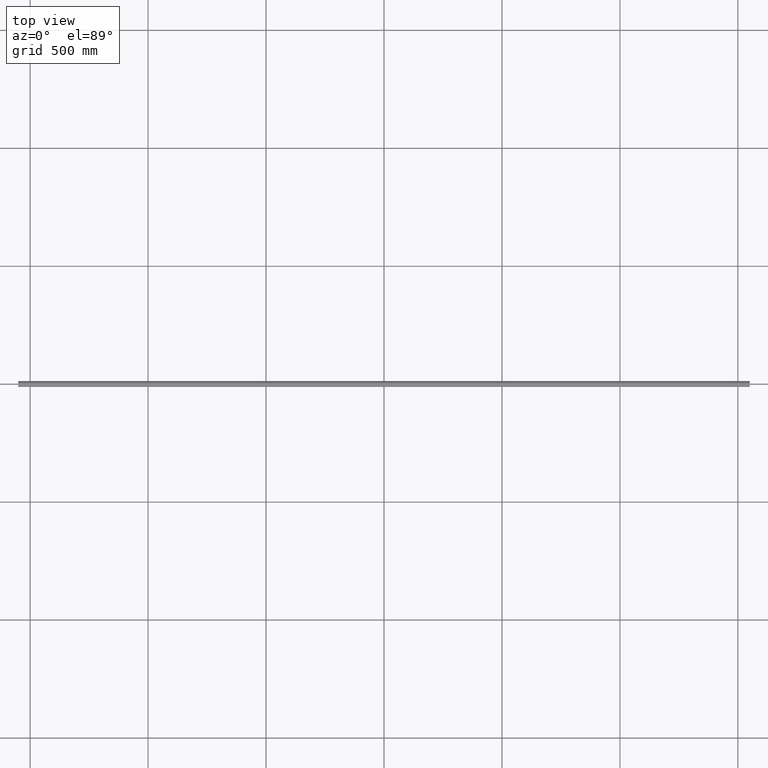
[diagram: clean part render]
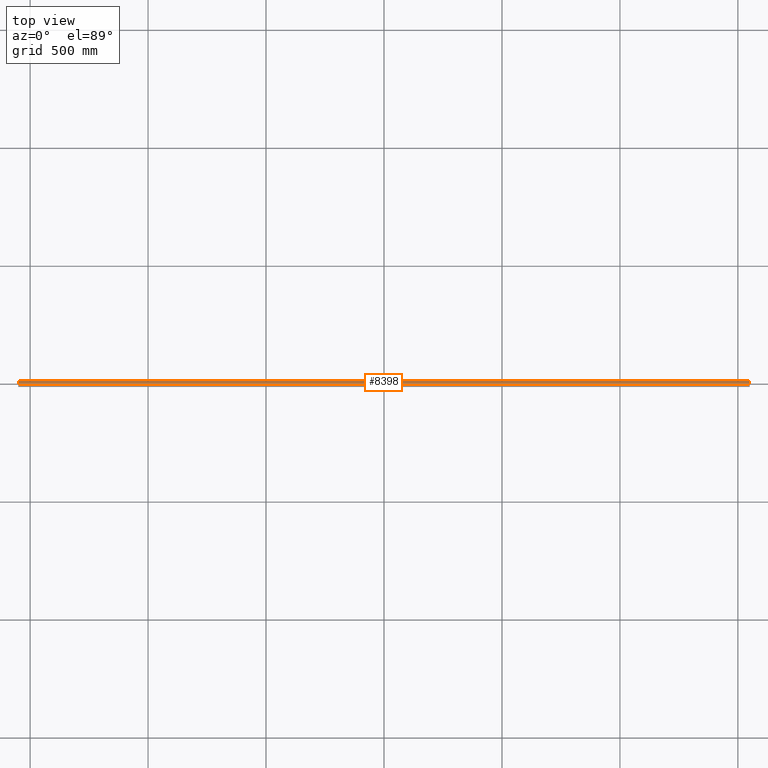
[diagram: same view with one face highlighted and labeled with its STEP entity id]
A machine part, top view. The second image highlights one B-rep face of the part: STEP entity #8398.
In plain terms, the highlighted cylindrical surface (edge-blend (fillet) strip) has radius 12.5 mm, axis along (-1, -0, -0).
Its self-contained STEP definition (entity closure, byte-faithful):
#164 = CARTESIAN_POINT ( 'NONE',  ( -1380.882055014743200, 3.291149578720083300, -12.05903691066760100 ) ) ;
#220 = CARTESIAN_POINT ( 'NONE',  ( -1378.487182274316600, 3.053142613515909000, -12.12172586120242100 ) ) ;
#231 = CARTESIAN_POINT ( 'NONE',  ( 693.4000000000000900, 1.530817147818667500E-015, -12.50000000000000000 ) ) ;
#269 = EDGE_CURVE ( 'NONE', #14058, #1977, #1271, .T. ) ;
#402 = CIRCLE ( 'NONE', #16149, 12.50000000000000000 ) ;
#412 = VERTEX_POINT ( 'NONE', #3174 ) ;
#500 = CARTESIAN_POINT ( 'NONE',  ( -1383.290153571396300, 0.8858490098630040800, -12.47049837081997800 ) ) ;
#530 = CARTESIAN_POINT ( 'NONE',  ( -686.6000000000001400, 1.530817147818667500E-015, -12.50000000000000000 ) ) ;
#543 = CARTESIAN_POINT ( 'NONE',  ( -3.399999999999987900, -3.085611381634476200E-019, -12.50000000000000000 ) ) ;
#549 = CARTESIAN_POINT ( 'NONE',  ( -1376.621719241459900, 0.4448867375077864000, -12.49403760771221700 ) ) ;
#576 = EDGE_CURVE ( 'NONE', #9384, #15832, #13231, .T. ) ;
#581 = CARTESIAN_POINT ( 'NONE',  ( -686.9450387026386100, 1.508773953162621000, -12.41031890877710200 ) ) ;
#648 = VERTEX_POINT ( 'NONE', #1802 ) ;
#721 = VECTOR ( 'NONE', #1426, 1000.000000000000000 ) ;
#738 = CARTESIAN_POINT ( 'NONE',  ( 1383.290102908206600, 0.8865257729732701800, -12.47048403254627800 ) ) ;
#771 = CARTESIAN_POINT ( 'NONE',  ( -3.399999999999987900, 0.2257309346313096400, -12.50000000000000400 ) ) ;
#792 = CARTESIAN_POINT ( 'NONE',  ( 1382.248139031425800, 2.560279434377590300, -12.23603317420600000 ) ) ;
#842 = EDGE_LOOP ( 'NONE', ( #6032, #9832, #8784, #16096, #4568, #16054, #6391, #7856, #9077, #9102, #1827, #3253, #8480, #15078 ) ) ;
#889 = CARTESIAN_POINT ( 'NONE',  ( -2.558929262746102700, 2.249555390736926800, -12.29693940646134300 ) ) ;
#996 = CARTESIAN_POINT ( 'NONE',  ( -2.948822403490601700, 1.707024174918695600, -12.38430592481708800 ) ) ;
#1053 = CARTESIAN_POINT ( 'NONE',  ( 688.2958995781209500, 2.950570385327931700, -12.14744228481905900 ) ) ;
#1105 = CARTESIAN_POINT ( 'NONE',  ( 686.9467577992732000, 1.512253423253397500, -12.40989427573226300 ) ) ;
#1253 = CARTESIAN_POINT ( 'NONE',  ( 690.8853662564489500, 3.290199395220138700, -12.05929658612623900 ) ) ;
#1271 = LINE ( 'NONE', #2999, #11084 ) ;
#1280 = VERTEX_POINT ( 'NONE', #2318 ) ;
#1297 = VERTEX_POINT ( 'NONE', #11122 ) ;
#1423 = CARTESIAN_POINT ( 'NONE',  ( -1382.558929262746200, 2.249555390737002700, -12.29693940646133000 ) ) ;
#1426 = DIRECTION ( 'NONE',  ( -1.000000000000000000, -0.0000000000000000000, -0.0000000000000000000 ) ) ;
#1535 = AXIS2_PLACEMENT_3D ( 'NONE', #3335, #7072, #8226 ) ;
#1571 = CARTESIAN_POINT ( 'NONE',  ( -687.2984030861954400, 2.076183846916757900, -12.32778155075019700 ) ) ;
#1802 = CARTESIAN_POINT ( 'NONE',  ( -693.3999999999999800, 1.240253457150525300E-014, -12.50000000000000000 ) ) ;
#1827 = ORIENTED_EDGE ( 'NONE', *, *, #16151, .T. ) ;
#1839 = CARTESIAN_POINT ( 'NONE',  ( -693.3999999999999800, 1.240253457150525300E-014, -12.50000000000000000 ) ) ;
#1883 = CARTESIAN_POINT ( 'NONE',  ( 1377.298735638538300, 2.076693513877993600, -12.32770492924914200 ) ) ;
#1889 = CARTESIAN_POINT ( 'NONE',  ( -691.7041004218792800, 2.950570385327931700, -12.14744228481905900 ) ) ;
#1932 = CARTESIAN_POINT ( 'NONE',  ( 1378.491150577891600, 3.054930781526008100, -12.12126751630187900 ) ) ;
#1977 = VERTEX_POINT ( 'NONE', #231 ) ;
#2002 = CARTESIAN_POINT ( 'NONE',  ( -691.5088494221088200, 3.054930781525983600, -12.12126751630187900 ) ) ;
#2049 = EDGE_CURVE ( 'NONE', #13836, #7710, #12762, .T. ) ;
#2090 = CARTESIAN_POINT ( 'NONE',  ( 693.2250748562823900, 1.099126717669559800, -12.45328610117817200 ) ) ;
#2105 = CARTESIAN_POINT ( 'NONE',  ( 1383.054961297362100, 1.508773953162735800, -12.41031890877709300 ) ) ;
#2199 = VECTOR ( 'NONE', #8029, 1000.000000000000000 ) ;
#2209 = CARTESIAN_POINT ( 'NONE',  ( 3.054961297361529200, 1.508773953162645000, -12.41031890877710400 ) ) ;
#2318 = CARTESIAN_POINT ( 'NONE',  ( 3.399999999999987900, 1.530817148184698900E-015, -12.50000000000000000 ) ) ;
#2463 = VERTEX_POINT ( 'NONE', #11539 ) ;
#2473 = CARTESIAN_POINT ( 'NONE',  ( 689.1179449852576200, 3.291149578720000200, -12.05903691066762600 ) ) ;
#2488 = FACE_OUTER_BOUND ( 'NONE', #842, .T. ) ;
#2752 = CARTESIAN_POINT ( 'NONE',  ( -1376.600000000000400, 0.2224906580846714400, -12.50000000000000000 ) ) ;
#2941 = EDGE_CURVE ( 'NONE', #1977, #7669, #14790, .T. ) ;
#2950 = CARTESIAN_POINT ( 'NONE',  ( -688.9013271858090100, 3.225401577627969600, -12.07703201683448800 ) ) ;
#2999 = CARTESIAN_POINT ( 'NONE',  ( 1550.000000000000000, 1.530808498934191500E-015, -12.50000000000000000 ) ) ;
#3027 = CARTESIAN_POINT ( 'NONE',  ( -1383.377737069944000, 0.4480304431356929000, -12.49389157976499500 ) ) ;
#3075 = CYLINDRICAL_SURFACE ( 'NONE', #10235, 12.50000000000000000 ) ;
#3118 = CARTESIAN_POINT ( 'NONE',  ( -692.9488224034907900, 1.707024174918659000, -12.38430592481709500 ) ) ;
#3173 = CARTESIAN_POINT ( 'NONE',  ( 1377.924774221110300, 2.702454775431760900, -12.20503821577508900 ) ) ;
#3174 = CARTESIAN_POINT ( 'NONE',  ( 1383.400000000000100, 1.530817149939125600E-015, -12.50000000000000000 ) ) ;
#3179 = CARTESIAN_POINT ( 'NONE',  ( -692.5589292627465700, 2.249555390736871300, -12.29693940646135500 ) ) ;
#3226 = CARTESIAN_POINT ( 'NONE',  ( 1376.946757799273400, 1.512253423253430800, -12.40989427573225600 ) ) ;
#3253 = ORIENTED_EDGE ( 'NONE', *, *, #576, .T. ) ;
#3279 = CARTESIAN_POINT ( 'NONE',  ( 1383.399999999999900, 0.2224906580846714400, -12.50000000000000000 ) ) ;
#3286 = CARTESIAN_POINT ( 'NONE',  ( -693.2901535713963300, 0.8858490098629775400, -12.47049837081998000 ) ) ;
#3315 = CARTESIAN_POINT ( 'NONE',  ( 1.098672814191161000, 3.225401577627994500, -12.07703201683448700 ) ) ;
#3335 = CARTESIAN_POINT ( 'NONE',  ( -1550.000000000000000, 0.0000000000000000000, 0.0000000000000000000 ) ) ;
#3374 = CARTESIAN_POINT ( 'NONE',  ( -0.8820550147423875700, 3.291149578720026400, -12.05903691066762000 ) ) ;
#3381 = DIRECTION ( 'NONE',  ( 1.000000000000000000, 0.0000000000000000000, 0.0000000000000000000 ) ) ;
#3396 = CARTESIAN_POINT ( 'NONE',  ( 1377.051177596509400, 1.707024174918713200, -12.38430592481708500 ) ) ;
#3430 = CARTESIAN_POINT ( 'NONE',  ( -2.701264361461520800, 2.076693513877970500, -12.32770492924914400 ) ) ;
#3500 = VECTOR ( 'NONE', #7631, 1000.000000000000000 ) ;
#3540 = CARTESIAN_POINT ( 'NONE',  ( -1.704100421879114700, 2.950570385327913000, -12.14744228481906400 ) ) ;
#3636 = CARTESIAN_POINT ( 'NONE',  ( 686.6000000000002500, 0.2257309346313073600, -12.49999999999999800 ) ) ;
#3742 = CARTESIAN_POINT ( 'NONE',  ( 689.7765544462710100, 3.400048205355171500, -12.02870201658427800 ) ) ;
#3798 = CARTESIAN_POINT ( 'NONE',  ( 691.0986728141911000, 3.225401577627969600, -12.07703201683448800 ) ) ;
#3907 = CARTESIAN_POINT ( 'NONE',  ( -1377.438393705202800, 2.246627044520734800, -12.29748777373633400 ) ) ;
#3964 = CARTESIAN_POINT ( 'NONE',  ( -1383.053242200727000, 1.512253423253430800, -12.40989427573225600 ) ) ;
#4115 = CARTESIAN_POINT ( 'NONE',  ( -687.0516343046770100, 1.707719232637206600, -12.38420091696254300 ) ) ;
#4223 = CARTESIAN_POINT ( 'NONE',  ( -689.5499947649567500, 3.377392597374309100, -12.03516786154909300 ) ) ;
#4248 = CARTESIAN_POINT ( 'NONE',  ( -1381.508849422109100, 3.054930781526008100, -12.12126751630187900 ) ) ;
#4293 = CARTESIAN_POINT ( 'NONE',  ( -1383.400000000000100, -9.932824226667062300E-015, -12.50000000000000000 ) ) ;
#4351 = CARTESIAN_POINT ( 'NONE',  ( -1550.000000000000000, 0.0000000000000000000, 12.50000000000000000 ) ) ;
#4362 = CARTESIAN_POINT ( 'NONE',  ( 3.399999999999988400, 0.2224906580846638700, -12.50000000000000200 ) ) ;
#4434 = CARTESIAN_POINT ( 'NONE',  ( 1376.600000000000100, -9.932824226667062300E-015, -12.50000000000000000 ) ) ;
#4443 = CARTESIAN_POINT ( 'NONE',  ( -693.2238383281429600, 1.102753275414778200, -12.45296436855722700 ) ) ;
#4491 = CARTESIAN_POINT ( 'NONE',  ( 1550.000000000000000, 1.530808498934191500E-015, -12.50000000000000000 ) ) ;
#4535 = CARTESIAN_POINT ( 'NONE',  ( 1381.512817725683400, 3.053142613515909000, -12.12172586120242100 ) ) ;
#4568 = ORIENTED_EDGE ( 'NONE', *, *, #2941, .T. ) ;
#4629 = CARTESIAN_POINT ( 'NONE',  ( -3.399999999999987900, -3.085611381634476200E-019, -12.50000000000000000 ) ) ;
#4901 = CARTESIAN_POINT ( 'NONE',  ( 692.7015969138050200, 2.076183846916757900, -12.32778155075019700 ) ) ;
#5017 = CARTESIAN_POINT ( 'NONE',  ( 686.7761616718568100, 1.102753275414778200, -12.45296436855722700 ) ) ;
#5237 = DIRECTION ( 'NONE',  ( -1.000000000000000000, -0.0000000000000000000, -0.0000000000000000000 ) ) ;
#5291 = LINE ( 'NONE', #4491, #8814 ) ;
#5387 = CARTESIAN_POINT ( 'NONE',  ( -686.7749251437178400, 1.099126717669559800, -12.45328610117817200 ) ) ;
#5442 = CARTESIAN_POINT ( 'NONE',  ( -686.6217192414599100, 0.4448867375077629700, -12.49403760771221900 ) ) ;
#5493 = CARTESIAN_POINT ( 'NONE',  ( -686.7098970917935500, 0.8865257729732174400, -12.47048403254628500 ) ) ;
#5516 = CARTESIAN_POINT ( 'NONE',  ( -1377.925459137238700, 2.702775320397860600, -12.20495341510522500 ) ) ;
#5657 = CARTESIAN_POINT ( 'NONE',  ( -690.8820550147423800, 3.291149578720000200, -12.05903691066762600 ) ) ;
#5798 = CARTESIAN_POINT ( 'NONE',  ( 3.378280758540311600, 0.4448867375077679700, -12.49403760771222100 ) ) ;
#5853 = CARTESIAN_POINT ( 'NONE',  ( 693.4000000000002000, 0.2224906580846630300, -12.50000000000000000 ) ) ;
#5873 = CARTESIAN_POINT ( 'NONE',  ( 1381.707697899846200, 2.948301563049428700, -12.14797926367841200 ) ) ;
#5925 = CARTESIAN_POINT ( 'NONE',  ( 1382.074540862761500, 2.702775320397860600, -12.20495341510522500 ) ) ;
#5954 = EDGE_CURVE ( 'NONE', #1280, #13836, #10257, .T. ) ;
#6032 = ORIENTED_EDGE ( 'NONE', *, *, #9572, .F. ) ;
#6115 = CARTESIAN_POINT ( 'NONE',  ( 691.7076978998461500, 2.948301563049304400, -12.14797926367844400 ) ) ;
#6219 = CARTESIAN_POINT ( 'NONE',  ( 686.6000000000002500, 1.240253457150525300E-014, -12.50000000000000000 ) ) ;
#6260 = B_SPLINE_CURVE_WITH_KNOTS ( 'NONE', 3,
 ( #530, #9329, #5442, #5493, #5387, #581, #4115, #1571, #12859, #10454, #15399, #10399, #15448, #2950, #11709, #4223, #14245, #14616, #15717, #5657, #10813, #2002, #1889, #9479, #7127, #3179, #13132, #3118, #9382, #4443, #3286, #14415, #13190, #1839 ),
 .UNSPECIFIED., .F., .F.,
 ( 4, 2, 2, 2, 2, 2, 2, 2, 2, 2, 2, 2, 2, 2, 2, 2, 4 ),
 ( 0.01068048760817228200, 0.01134783680047156600, 0.01201518599277084900, 0.01268253518507013100, 0.01334988437736941500, 0.01401723356966869800, 0.01468458276196798000, 0.01535193195426726300, 0.01601928114656654700, 0.01668663033886583200, 0.01735397953116511400, 0.01802132872346439600, 0.01868867791576368100, 0.01935602710806296300, 0.02002337630036224400, 0.02069072549266153000, 0.02135807468496081100 ),
 .UNSPECIFIED. ) ;
#6268 = CARTESIAN_POINT ( 'NONE',  ( 687.7530581111726600, 2.561224429050289700, -12.23582231181098500 ) ) ;
#6391 = ORIENTED_EDGE ( 'NONE', *, *, #5954, .T. ) ;
#6695 = DIRECTION ( 'NONE',  ( -1.000000000000000000, -0.0000000000000000000, -0.0000000000000000000 ) ) ;
#6778 = CARTESIAN_POINT ( 'NONE',  ( -1381.099029707849500, 3.225114317319371700, -12.07710089060663700 ) ) ;
#6833 = CARTESIAN_POINT ( 'NONE',  ( -1377.751860968574000, 2.560279434377590300, -12.23603317420600000 ) ) ;
#6891 = CARTESIAN_POINT ( 'NONE',  ( -1376.709897091793200, 0.8865257729732701800, -12.47048403254627800 ) ) ;
#6970 = CARTESIAN_POINT ( 'NONE',  ( 1383.378280758540300, 0.4448867375077864000, -12.49403760771221700 ) ) ;
#7015 = CARTESIAN_POINT ( 'NONE',  ( 1380.450005235042900, 3.377392597374443600, -12.03516786154905600 ) ) ;
#7047 = CARTESIAN_POINT ( 'NONE',  ( 0.4500052350430838700, 3.377392597374347700, -12.03516786154908400 ) ) ;
#7069 = CARTESIAN_POINT ( 'NONE',  ( 1382.561606294797500, 2.246627044520734800, -12.29748777373633400 ) ) ;
#7072 = DIRECTION ( 'NONE',  ( 1.000000000000000000, 0.0000000000000000000, 0.0000000000000000000 ) ) ;
#7100 = CARTESIAN_POINT ( 'NONE',  ( 693.2901029082067900, 0.8865257729732174400, -12.47048403254628500 ) ) ;
#7121 = CARTESIAN_POINT ( 'NONE',  ( 1376.599999999999900, 0.2257309346313159700, -12.50000000000000200 ) ) ;
#7127 = CARTESIAN_POINT ( 'NONE',  ( -692.2469418888275600, 2.561224429050289700, -12.23582231181098500 ) ) ;
#7178 = CARTESIAN_POINT ( 'NONE',  ( 1376.776161671857400, 1.102753275414796000, -12.45296436855723100 ) ) ;
#7211 = CARTESIAN_POINT ( 'NONE',  ( 1.512817725683325700, 3.053142613515821100, -12.12172586120244100 ) ) ;
#7257 = CARTESIAN_POINT ( 'NONE',  ( 2.701596913804633600, 2.076183846916805500, -12.32778155075019200 ) ) ;
#7361 = B_SPLINE_CURVE_WITH_KNOTS ( 'NONE', 3,
 ( #11533, #3279, #6970, #738, #14609, #2105, #14501, #14554, #7069, #792, #5925, #5873, #4535, #10867, #15823, #7015, #15766, #10706, #13415, #8430, #14664, #1932, #11904, #3173, #9523, #10657, #1883, #3396, #3226, #7178, #12124, #12013, #7121, #4434 ),
 .UNSPECIFIED., .F., .F.,
 ( 4, 2, 2, 2, 2, 2, 2, 2, 2, 2, 2, 2, 2, 2, 2, 2, 4 ),
 ( 0.01068048760817264100, 0.01134783680047194900, 0.01201518599277125500, 0.01268253518507056500, 0.01334988437736987300, 0.01401723356966918000, 0.01468458276196848800, 0.01535193195426779600, 0.01601928114656710200, 0.01668663033886641500, 0.01735397953116572100, 0.01802132872346502700, 0.01868867791576433300, 0.01935602710806364300, 0.02002337630036294900, 0.02069072549266225800, 0.02135807468496156400 ),
 .UNSPECIFIED. ) ;
#7415 = CARTESIAN_POINT ( 'NONE',  ( -1383.400000000000100, -9.932824226667062300E-015, -12.50000000000000000 ) ) ;
#7631 = DIRECTION ( 'NONE',  ( -1.000000000000000000, -0.0000000000000000000, -0.0000000000000000000 ) ) ;
#7669 = VERTEX_POINT ( 'NONE', #10010 ) ;
#7704 = CARTESIAN_POINT ( 'NONE',  ( -1379.549994764957100, 3.377392597374443600, -12.03516786154905600 ) ) ;
#7708 = CARTESIAN_POINT ( 'NONE',  ( 1550.000000000000000, 1.530808498934191500E-015, -12.50000000000000000 ) ) ;
#7710 = VERTEX_POINT ( 'NONE', #10877 ) ;
#7856 = ORIENTED_EDGE ( 'NONE', *, *, #2049, .T. ) ;
#7974 = DIRECTION ( 'NONE',  ( 0.0000000000000000000, 0.0000000000000000000, 1.000000000000000000 ) ) ;
#8028 = CARTESIAN_POINT ( 'NONE',  ( -1377.051634304677500, 1.707719232637369100, -12.38420091696252900 ) ) ;
#8029 = DIRECTION ( 'NONE',  ( -1.000000000000000000, -0.0000000000000000000, -0.0000000000000000000 ) ) ;
#8203 = LINE ( 'NONE', #7708, #721 ) ;
#8226 = DIRECTION ( 'NONE',  ( 0.0000000000000000000, 0.0000000000000000000, -1.000000000000000000 ) ) ;
#8243 = EDGE_CURVE ( 'NONE', #1297, #14933, #12874, .T. ) ;
#8309 = CARTESIAN_POINT ( 'NONE',  ( 1.707697899846059700, 2.948301563049316300, -12.14797926367844200 ) ) ;
#8311 = EDGE_CURVE ( 'NONE', #648, #2463, #8203, .T. ) ;
#8361 = CARTESIAN_POINT ( 'NONE',  ( -3.223838328143045800, 1.102753275414799100, -12.45296436855723100 ) ) ;
#8398 = ADVANCED_FACE ( 'NONE', ( #2488 ), #3075, .T. ) ;
#8430 = CARTESIAN_POINT ( 'NONE',  ( 1379.117944985257500, 3.291149578720083300, -12.05903691066760100 ) ) ;
#8467 = CARTESIAN_POINT ( 'NONE',  ( -3.377737069943542300, 0.4480304431356853000, -12.49389157976499100 ) ) ;
#8480 = ORIENTED_EDGE ( 'NONE', *, *, #10687, .T. ) ;
#8523 = CARTESIAN_POINT ( 'NONE',  ( 693.4000000000000900, 1.530817147818667500E-015, -12.50000000000000000 ) ) ;
#8582 = CARTESIAN_POINT ( 'NONE',  ( 686.7098464286039000, 0.8858490098629775400, -12.47049837081998000 ) ) ;
#8630 = CARTESIAN_POINT ( 'NONE',  ( 692.5616062947976800, 2.246627044520512300, -12.29748777373637700 ) ) ;
#8688 = CARTESIAN_POINT ( 'NONE',  ( 686.6222629300567600, 0.4480304431356896300, -12.49389157976499500 ) ) ;
#8782 = VECTOR ( 'NONE', #13718, 1000.000000000000000 ) ;
#8784 = ORIENTED_EDGE ( 'NONE', *, *, #14584, .T. ) ;
#8797 = CARTESIAN_POINT ( 'NONE',  ( 691.5128177256834800, 3.053142613515797500, -12.12172586120244800 ) ) ;
#8814 = VECTOR ( 'NONE', #13246, 1000.000000000000000 ) ;
#8958 = CARTESIAN_POINT ( 'NONE',  ( -1382.075225778890200, 2.702454775431760900, -12.20503821577508900 ) ) ;
#9009 = CARTESIAN_POINT ( 'NONE',  ( -1379.114633743551400, 3.290199395220273700, -12.05929658612620200 ) ) ;
#9077 = ORIENTED_EDGE ( 'NONE', *, *, #9419, .T. ) ;
#9102 = ORIENTED_EDGE ( 'NONE', *, *, #8311, .T. ) ;
#9135 = VECTOR ( 'NONE', #11506, 1000.000000000000000 ) ;
#9329 = CARTESIAN_POINT ( 'NONE',  ( -686.6000000000002500, 0.2224906580846630300, -12.50000000000000000 ) ) ;
#9350 = CARTESIAN_POINT ( 'NONE',  ( -1380.223445553729100, 3.400048205355289600, -12.02870201658424800 ) ) ;
#9362 = B_SPLINE_CURVE_WITH_KNOTS ( 'NONE', 3,
 ( #13929, #2752, #549, #6891, #15243, #15525, #8028, #10526, #3907, #6833, #5516, #12644, #220, #15183, #9009, #7704, #14323, #9350, #10576, #164, #6778, #4248, #11507, #8958, #12992, #1423, #14268, #11450, #3964, #12696, #500, #3027, #11783, #4293 ),
 .UNSPECIFIED., .F., .F.,
 ( 4, 2, 2, 2, 2, 2, 2, 2, 2, 2, 2, 2, 2, 2, 2, 2, 4 ),
 ( 0.01068048760817264100, 0.01134783680047194900, 0.01201518599277125500, 0.01268253518507056500, 0.01334988437736987300, 0.01401723356966918000, 0.01468458276196848800, 0.01535193195426779600, 0.01601928114656710200, 0.01668663033886641500, 0.01735397953116572100, 0.01802132872346502700, 0.01868867791576433300, 0.01935602710806364300, 0.02002337630036294900, 0.02069072549266225800, 0.02135807468496156400 ),
 .UNSPECIFIED. ) ;
#9382 = CARTESIAN_POINT ( 'NONE',  ( -693.0532422007272500, 1.512253423253397500, -12.40989427573226300 ) ) ;
#9384 = VERTEX_POINT ( 'NONE', #7415 ) ;
#9419 = EDGE_CURVE ( 'NONE', #7710, #648, #6260, .T. ) ;
#9479 = CARTESIAN_POINT ( 'NONE',  ( -692.0752257788899400, 2.702454775431625000, -12.20503821577511700 ) ) ;
#9523 = CARTESIAN_POINT ( 'NONE',  ( 1377.753058111172300, 2.561224429050425100, -12.23582231181095600 ) ) ;
#9572 = EDGE_CURVE ( 'NONE', #14030, #1297, #402, .T. ) ;
#9671 = CARTESIAN_POINT ( 'NONE',  ( 2.074540862761341800, 2.702775320397742000, -12.20495341510525300 ) ) ;
#9819 = CARTESIAN_POINT ( 'NONE',  ( 688.4911505778914000, 3.054930781525983600, -12.12126751630187900 ) ) ;
#9832 = ORIENTED_EDGE ( 'NONE', *, *, #14016, .T. ) ;
#10010 = CARTESIAN_POINT ( 'NONE',  ( 686.6000000000002500, 1.240253457150525300E-014, -12.50000000000000000 ) ) ;
#10035 = CARTESIAN_POINT ( 'NONE',  ( 690.2249101616985200, 3.399951636918531000, -12.02872931232275500 ) ) ;
#10138 = CARTESIAN_POINT ( 'NONE',  ( 1376.600000000000100, -9.932824226667062300E-015, -12.50000000000000000 ) ) ;
#10142 = LINE ( 'NONE', #10355, #3500 ) ;
#10201 = CARTESIAN_POINT ( 'NONE',  ( 1550.000000000000000, 0.0000000000000000000, 0.0000000000000000000 ) ) ;
#10235 = AXIS2_PLACEMENT_3D ( 'NONE', #10201, #5237, #7974 ) ;
#10257 = B_SPLINE_CURVE_WITH_KNOTS ( 'NONE', 3,
 ( #12998, #4362, #5798, #14591, #14536, #2209, #12218, #7257, #13446, #10848, #9671, #8309, #7211, #3315, #13275, #7047, #15976, #12109, #16028, #3374, #12053, #15912, #3540, #15805, #13395, #889, #3430, #996, #14647, #8361, #13500, #8467, #771, #4629 ),
 .UNSPECIFIED., .F., .F.,
 ( 4, 2, 2, 2, 2, 2, 2, 2, 2, 2, 2, 2, 2, 2, 2, 2, 4 ),
 ( 0.01068048760817239500, 0.01134783680047168500, 0.01201518599277097800, 0.01268253518507026800, 0.01334988437736955900, 0.01401723356966884900, 0.01468458276196813900, 0.01535193195426743000, 0.01601928114656672000, 0.01668663033886601300, 0.01735397953116530100, 0.01802132872346459300, 0.01868867791576388200, 0.01935602710806317400, 0.02002337630036246700, 0.02069072549266175900, 0.02135807468496104700 ),
 .UNSPECIFIED. ) ;
#10355 = CARTESIAN_POINT ( 'NONE',  ( 1550.000000000000000, 1.530808498934191500E-015, -12.50000000000000000 ) ) ;
#10399 = CARTESIAN_POINT ( 'NONE',  ( -688.2923021001540700, 2.948301563049304400, -12.14797926367844400 ) ) ;
#10454 = CARTESIAN_POINT ( 'NONE',  ( -687.7518609685741900, 2.560279434377374500, -12.23603317420604600 ) ) ;
#10526 = CARTESIAN_POINT ( 'NONE',  ( -1377.298403086195800, 2.076183846916918700, -12.32778155075017400 ) ) ;
#10576 = CARTESIAN_POINT ( 'NONE',  ( -1380.444814638787900, 3.378139508022424600, -12.03495784066944600 ) ) ;
#10657 = CARTESIAN_POINT ( 'NONE',  ( 1377.441070737253800, 2.249555390737002700, -12.29693940646133000 ) ) ;
#10687 = EDGE_CURVE ( 'NONE', #15832, #14933, #12326, .T. ) ;
#10706 = CARTESIAN_POINT ( 'NONE',  ( 1379.776554446271100, 3.400048205355289600, -12.02870201658424800 ) ) ;
#10813 = CARTESIAN_POINT ( 'NONE',  ( -691.0990297078490100, 3.225114317319322000, -12.07710089060665500 ) ) ;
#10848 = CARTESIAN_POINT ( 'NONE',  ( 2.248139031426001900, 2.560279434377429600, -12.23603317420603700 ) ) ;
#10867 = CARTESIAN_POINT ( 'NONE',  ( 1381.098672814191300, 3.225401577628083300, -12.07703201683446500 ) ) ;
#10877 = CARTESIAN_POINT ( 'NONE',  ( -686.6000000000001400, 1.530817147818667500E-015, -12.50000000000000000 ) ) ;
#11084 = VECTOR ( 'NONE', #6695, 1000.000000000000000 ) ;
#11122 = CARTESIAN_POINT ( 'NONE',  ( 1550.000000000000000, 0.0000000000000000000, 12.50000000000000000 ) ) ;
#11224 = CARTESIAN_POINT ( 'NONE',  ( 687.9247742211100600, 2.702454775431625000, -12.20503821577511700 ) ) ;
#11277 = CARTESIAN_POINT ( 'NONE',  ( 690.4500052350432500, 3.377392597374309100, -12.03516786154909300 ) ) ;
#11450 = CARTESIAN_POINT ( 'NONE',  ( -1382.948822403490600, 1.707024174918713200, -12.38430592481708500 ) ) ;
#11506 = DIRECTION ( 'NONE',  ( -1.000000000000000000, -0.0000000000000000000, -0.0000000000000000000 ) ) ;
#11507 = CARTESIAN_POINT ( 'NONE',  ( -1381.704100421879300, 2.950570385328055200, -12.14744228481902900 ) ) ;
#11533 = CARTESIAN_POINT ( 'NONE',  ( 1383.400000000000100, 1.530817149939125600E-015, -12.50000000000000000 ) ) ;
#11539 = CARTESIAN_POINT ( 'NONE',  ( -1376.600000000000100, 1.530817149939125600E-015, -12.50000000000000000 ) ) ;
#11709 = CARTESIAN_POINT ( 'NONE',  ( -689.1146337435511700, 3.290199395220138700, -12.05929658612623900 ) ) ;
#11783 = CARTESIAN_POINT ( 'NONE',  ( -1383.400000000000300, 0.2257309346313159700, -12.50000000000000200 ) ) ;
#11904 = CARTESIAN_POINT ( 'NONE',  ( 1378.295899578121200, 2.950570385328055200, -12.14744228481902900 ) ) ;
#12013 = CARTESIAN_POINT ( 'NONE',  ( 1376.622262930056400, 0.4480304431356929000, -12.49389157976499500 ) ) ;
#12053 = CARTESIAN_POINT ( 'NONE',  ( -1.099029707848881500, 3.225114317319354400, -12.07710089060664600 ) ) ;
#12109 = CARTESIAN_POINT ( 'NONE',  ( -0.2234455537290499200, 3.400048205355200800, -12.02870201658427800 ) ) ;
#12124 = CARTESIAN_POINT ( 'NONE',  ( 1376.709846428603700, 0.8858490098630040800, -12.47049837081997800 ) ) ;
#12218 = CARTESIAN_POINT ( 'NONE',  ( 2.948365695323054600, 1.707719232637258800, -12.38420091696254100 ) ) ;
#12266 = CARTESIAN_POINT ( 'NONE',  ( 693.3782807585405400, 0.4448867375077629700, -12.49403760771221900 ) ) ;
#12306 = CARTESIAN_POINT ( 'NONE',  ( 692.0745408627615200, 2.702775320397728700, -12.20495341510524800 ) ) ;
#12319 = EDGE_CURVE ( 'NONE', #7669, #1280, #5291, .T. ) ;
#12326 = CIRCLE ( 'NONE', #1535, 12.50000000000000000 ) ;
#12478 = CARTESIAN_POINT ( 'NONE',  ( 688.9009702921512100, 3.225114317319322000, -12.07710089060665500 ) ) ;
#12540 = CARTESIAN_POINT ( 'NONE',  ( 1550.000000000000000, 0.0000000000000000000, 12.50000000000000000 ) ) ;
#12644 = CARTESIAN_POINT ( 'NONE',  ( -1378.292302100154500, 2.948301563049428700, -12.14797926367841200 ) ) ;
#12696 = CARTESIAN_POINT ( 'NONE',  ( -1383.223838328143300, 1.102753275414796000, -12.45296436855723100 ) ) ;
#12762 = LINE ( 'NONE', #15250, #2199 ) ;
#12859 = CARTESIAN_POINT ( 'NONE',  ( -687.4383937052026600, 2.246627044520512300, -12.29748777373637700 ) ) ;
#12874 = LINE ( 'NONE', #12540, #8782 ) ;
#12992 = CARTESIAN_POINT ( 'NONE',  ( -1382.246941888827900, 2.561224429050425100, -12.23582231181095600 ) ) ;
#12998 = CARTESIAN_POINT ( 'NONE',  ( 3.399999999999987900, 1.530817148184698900E-015, -12.50000000000000000 ) ) ;
#13132 = CARTESIAN_POINT ( 'NONE',  ( -692.7012643614617700, 2.076693513877929200, -12.32770492924915700 ) ) ;
#13190 = CARTESIAN_POINT ( 'NONE',  ( -693.3999999999999800, 0.2257309346313073600, -12.49999999999999800 ) ) ;
#13231 = LINE ( 'NONE', #14045, #9135 ) ;
#13246 = DIRECTION ( 'NONE',  ( -1.000000000000000000, -0.0000000000000000000, -0.0000000000000000000 ) ) ;
#13275 = CARTESIAN_POINT ( 'NONE',  ( 0.8853662564486808300, 3.290199395220185800, -12.05929658612622800 ) ) ;
#13391 = CARTESIAN_POINT ( 'NONE',  ( 693.0549612973615000, 1.508773953162621000, -12.41031890877710200 ) ) ;
#13395 = CARTESIAN_POINT ( 'NONE',  ( -2.246941888827483700, 2.561224429050344800, -12.23582231181097100 ) ) ;
#13402 = DIRECTION ( 'NONE',  ( 0.0000000000000000000, 0.0000000000000000000, -1.000000000000000000 ) ) ;
#13415 = CARTESIAN_POINT ( 'NONE',  ( 1379.555185361212600, 3.378139508022424600, -12.03495784066944600 ) ) ;
#13446 = CARTESIAN_POINT ( 'NONE',  ( 2.561606294797429000, 2.246627044520570000, -12.29748777373636600 ) ) ;
#13500 = CARTESIAN_POINT ( 'NONE',  ( -3.290153571396316600, 0.8858490098629751000, -12.47049837081998200 ) ) ;
#13549 = CARTESIAN_POINT ( 'NONE',  ( 687.0511775965095500, 1.707024174918659000, -12.38430592481709500 ) ) ;
#13718 = DIRECTION ( 'NONE',  ( -1.000000000000000000, -0.0000000000000000000, -0.0000000000000000000 ) ) ;
#13836 = VERTEX_POINT ( 'NONE', #543 ) ;
#13929 = CARTESIAN_POINT ( 'NONE',  ( -1376.600000000000100, 1.530817149939125600E-015, -12.50000000000000000 ) ) ;
#14016 = EDGE_CURVE ( 'NONE', #14030, #412, #10142, .T. ) ;
#14030 = VERTEX_POINT ( 'NONE', #14095 ) ;
#14045 = CARTESIAN_POINT ( 'NONE',  ( 1550.000000000000000, 1.530808498934191500E-015, -12.50000000000000000 ) ) ;
#14058 = VERTEX_POINT ( 'NONE', #10138 ) ;
#14095 = CARTESIAN_POINT ( 'NONE',  ( 1550.000000000000000, 1.530808498934191500E-015, -12.50000000000000000 ) ) ;
#14245 = CARTESIAN_POINT ( 'NONE',  ( -689.7750898383017100, 3.399951636918531000, -12.02872931232275500 ) ) ;
#14268 = CARTESIAN_POINT ( 'NONE',  ( -1382.701264361461900, 2.076693513877993600, -12.32770492924914200 ) ) ;
#14323 = CARTESIAN_POINT ( 'NONE',  ( -1379.775089838301900, 3.399951636918634900, -12.02872931232272400 ) ) ;
#14415 = CARTESIAN_POINT ( 'NONE',  ( -693.3777370699435800, 0.4480304431356896300, -12.49389157976499500 ) ) ;
#14501 = CARTESIAN_POINT ( 'NONE',  ( 1382.948365695323400, 1.707719232637369100, -12.38420091696252900 ) ) ;
#14536 = CARTESIAN_POINT ( 'NONE',  ( 3.225074856282216000, 1.099126717669580500, -12.45328610117816800 ) ) ;
#14554 = CARTESIAN_POINT ( 'NONE',  ( 1382.701596913804700, 2.076183846916918700, -12.32778155075017400 ) ) ;
#14584 = EDGE_CURVE ( 'NONE', #412, #14058, #7361, .T. ) ;
#14591 = CARTESIAN_POINT ( 'NONE',  ( 3.290102908206402600, 0.8865257729732264300, -12.47048403254628100 ) ) ;
#14609 = CARTESIAN_POINT ( 'NONE',  ( 1383.225074856282400, 1.099126717669656000, -12.45328610117816300 ) ) ;
#14616 = CARTESIAN_POINT ( 'NONE',  ( -690.2234455537291100, 3.400048205355171500, -12.02870201658427800 ) ) ;
#14647 = CARTESIAN_POINT ( 'NONE',  ( -3.053242200727046100, 1.512253423253419500, -12.40989427573226000 ) ) ;
#14664 = CARTESIAN_POINT ( 'NONE',  ( 1378.900970292150500, 3.225114317319371700, -12.07710089060663700 ) ) ;
#14790 = B_SPLINE_CURVE_WITH_KNOTS ( 'NONE', 3,
 ( #8523, #5853, #12266, #7100, #2090, #13391, #16184, #4901, #8630, #16074, #12306, #6115, #8797, #3798, #1253, #11277, #10035, #3742, #16276, #2473, #12478, #9819, #1053, #11224, #6268, #16130, #14962, #13549, #1105, #5017, #8582, #8688, #3636, #6219 ),
 .UNSPECIFIED., .F., .F.,
 ( 4, 2, 2, 2, 2, 2, 2, 2, 2, 2, 2, 2, 2, 2, 2, 2, 4 ),
 ( 0.01068048760817228200, 0.01134783680047156600, 0.01201518599277084900, 0.01268253518507013100, 0.01334988437736941500, 0.01401723356966869800, 0.01468458276196798000, 0.01535193195426726300, 0.01601928114656654700, 0.01668663033886583200, 0.01735397953116511400, 0.01802132872346439600, 0.01868867791576368100, 0.01935602710806296300, 0.02002337630036224400, 0.02069072549266153000, 0.02135807468496081100 ),
 .UNSPECIFIED. ) ;
#14933 = VERTEX_POINT ( 'NONE', #4351 ) ;
#14962 = CARTESIAN_POINT ( 'NONE',  ( 687.2987356385388000, 2.076693513877929200, -12.32770492924915700 ) ) ;
#15078 = ORIENTED_EDGE ( 'NONE', *, *, #8243, .F. ) ;
#15183 = CARTESIAN_POINT ( 'NONE',  ( -1378.901327185809800, 3.225401577628083300, -12.07703201683446500 ) ) ;
#15243 = CARTESIAN_POINT ( 'NONE',  ( -1376.774925143717800, 1.099126717669656000, -12.45328610117816300 ) ) ;
#15250 = CARTESIAN_POINT ( 'NONE',  ( 1550.000000000000000, 1.530808498934191500E-015, -12.50000000000000000 ) ) ;
#15399 = CARTESIAN_POINT ( 'NONE',  ( -687.9254591372384800, 2.702775320397728700, -12.20495341510524800 ) ) ;
#15448 = CARTESIAN_POINT ( 'NONE',  ( -688.4871822743167500, 3.053142613515797500, -12.12172586120244800 ) ) ;
#15468 = CARTESIAN_POINT ( 'NONE',  ( -1550.000000000000000, 1.530808498934191500E-015, -12.50000000000000000 ) ) ;
#15525 = CARTESIAN_POINT ( 'NONE',  ( -1376.945038702638800, 1.508773953162735800, -12.41031890877709300 ) ) ;
#15717 = CARTESIAN_POINT ( 'NONE',  ( -690.4448146387878800, 3.378139508022326000, -12.03495784066947700 ) ) ;
#15766 = CARTESIAN_POINT ( 'NONE',  ( 1380.224910161698500, 3.399951636918634900, -12.02872931232272400 ) ) ;
#15805 = CARTESIAN_POINT ( 'NONE',  ( -2.075225778890007700, 2.702454775431597100, -12.20503821577512800 ) ) ;
#15812 = CARTESIAN_POINT ( 'NONE',  ( 1550.000000000000000, 0.0000000000000000000, 0.0000000000000000000 ) ) ;
#15823 = CARTESIAN_POINT ( 'NONE',  ( 1380.885366256449100, 3.290199395220273700, -12.05929658612620200 ) ) ;
#15832 = VERTEX_POINT ( 'NONE', #15468 ) ;
#15912 = CARTESIAN_POINT ( 'NONE',  ( -1.508849422108623300, 3.054930781526016500, -12.12126751630187000 ) ) ;
#15976 = CARTESIAN_POINT ( 'NONE',  ( 0.2249101616983749900, 3.399951636918561200, -12.02872931232274900 ) ) ;
#16028 = CARTESIAN_POINT ( 'NONE',  ( -0.4448146387875762100, 3.378139508022349500, -12.03495784066947200 ) ) ;
#16054 = ORIENTED_EDGE ( 'NONE', *, *, #12319, .T. ) ;
#16074 = CARTESIAN_POINT ( 'NONE',  ( 692.2481390314259200, 2.560279434377374500, -12.23603317420604600 ) ) ;
#16096 = ORIENTED_EDGE ( 'NONE', *, *, #269, .T. ) ;
#16130 = CARTESIAN_POINT ( 'NONE',  ( 687.4410707372541100, 2.249555390736871300, -12.29693940646135500 ) ) ;
#16149 = AXIS2_PLACEMENT_3D ( 'NONE', #15812, #3381, #13402 ) ;
#16151 = EDGE_CURVE ( 'NONE', #2463, #9384, #9362, .T. ) ;
#16184 = CARTESIAN_POINT ( 'NONE',  ( 692.9483656953231000, 1.707719232637206600, -12.38420091696254300 ) ) ;
#16276 = CARTESIAN_POINT ( 'NONE',  ( 689.5551853612125800, 3.378139508022326000, -12.03495784066947700 ) ) ;